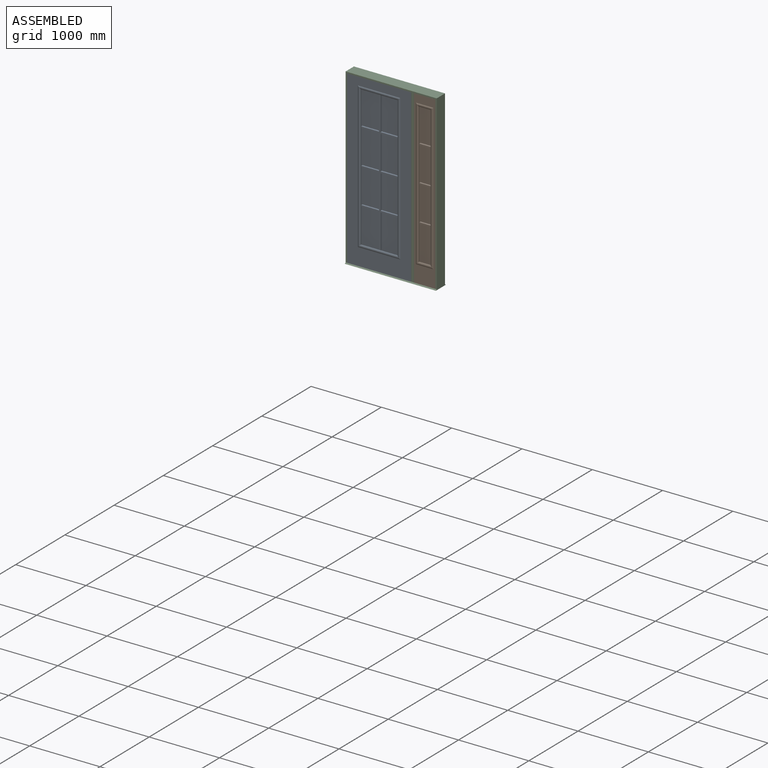
[diagram: assembled view]
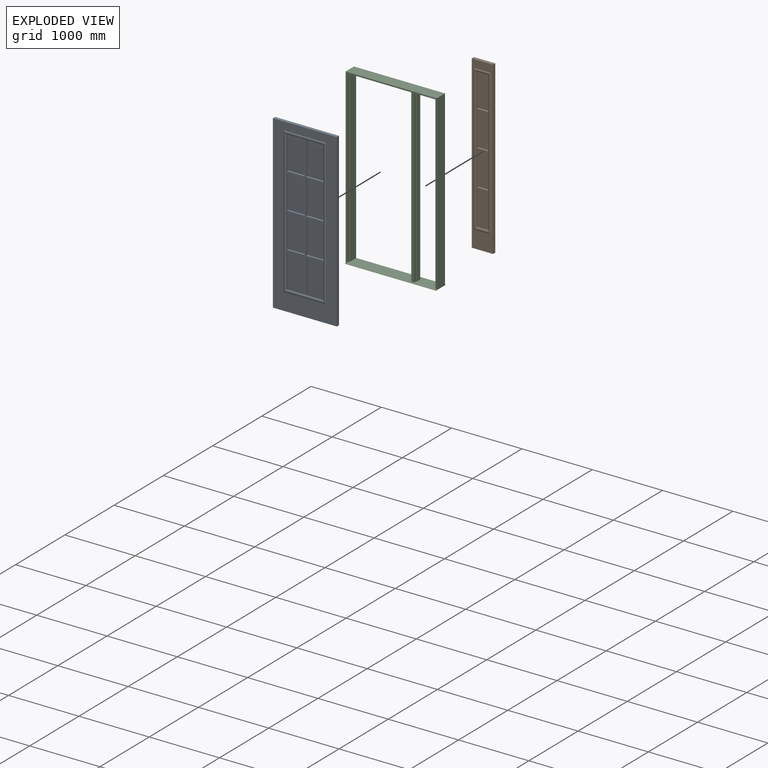
[diagram: exploded view]
GUIDED TOUR — MATED ASSEMBLY (Onshape document 57436517e4b0e6f621c3f62f, AutoMate assembly 57436517e4b0e6f621c3f62f_8da6c05ed406811d1453ef13_94d8b8f20b467b041387943a_default)

This assembly has 3 components, labeled P0..P2 below (a component is one placed occurrence of a part; the same part can appear more than once), held together by 6 mates. A mate is a constraint between two components; its type names the relative motion it leaves free:
  PLANAR — leaves sliding in the plane through the listed point (normal = the listed direction) and rotation about that normal free.
Axis/direction vectors are unit vectors and 'through' points are millimeter coordinates, both in the assembly's world frame.

MATES
  1. PLANAR "Planar 5": P0 <-> P2, direction (0.000, 0.000, 1.000) through (-344.49, 0.00, 2435.23) mm
  2. PLANAR "Planar 1": P1 <-> P0, direction (0.000, 0.000, -1.000) through (-301.63, -22.23, 0.00) mm
  3. PLANAR "Planar 2": P0 <-> P1, direction (0.000, -1.000, 0.000) through (-798.51, -44.45, 1132.57) mm
  4. PLANAR "Planar 6": P2 <-> P0, direction (1.000, 0.000, 0.000) through (-1255.71, -44.45, 1217.61) mm
  5. PLANAR "Planar 3": P1 <-> P0, direction (-1.000, 0.000, 0.000) through (-301.63, -22.23, 1217.61) mm
  6. PLANAR "Planar 4": P0 <-> P2, direction (0.000, -1.000, 0.000) through (-798.51, -44.45, 1132.57) mm

ASSEMBLY ORDER
  1. P2 — the base component [order verified]
  2. P0 [order verified]
  3. P1 [order verified]
Order-tag legend:
  [order verified] — this step's position reverses a verified removal order: the component was checked to insert without passing through the ones already placed.

Of the 3 components, 1 carries the full construction recipe — the FeatureScript program that regenerates the part's solid from scratch; the rest are supplied as boundary geometry only.
Each toured component is shown spotlighted twice — in the assembled view, then in the exploded view, where a leader line traces a displaced component back to its assembled socket (saturated green if recipe-attached, orange if geometry-only; every other component desaturated gray) — followed by its recipe or geometry summary and the mates that hold it.
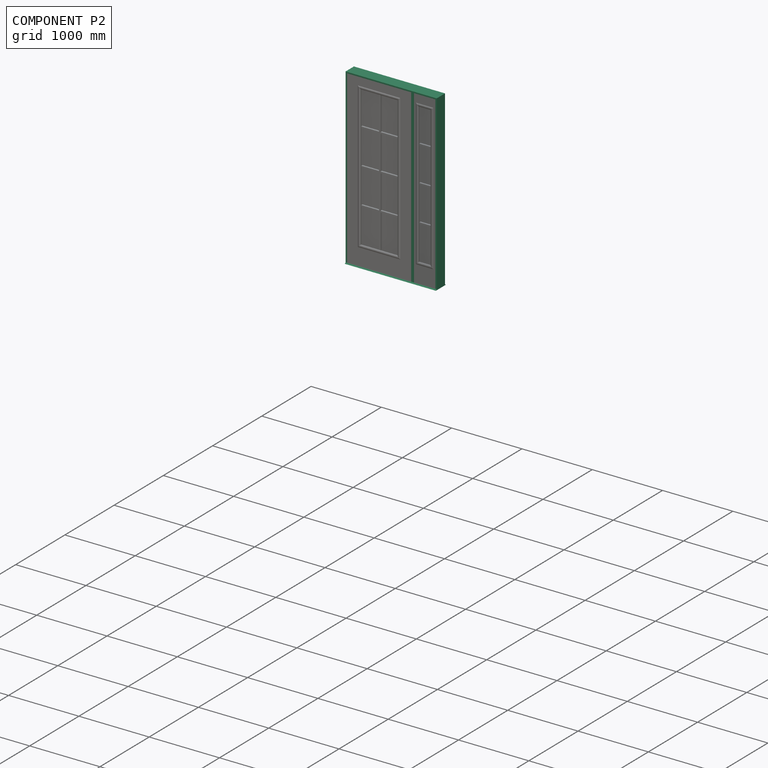
[diagram: component P2 — assembled]
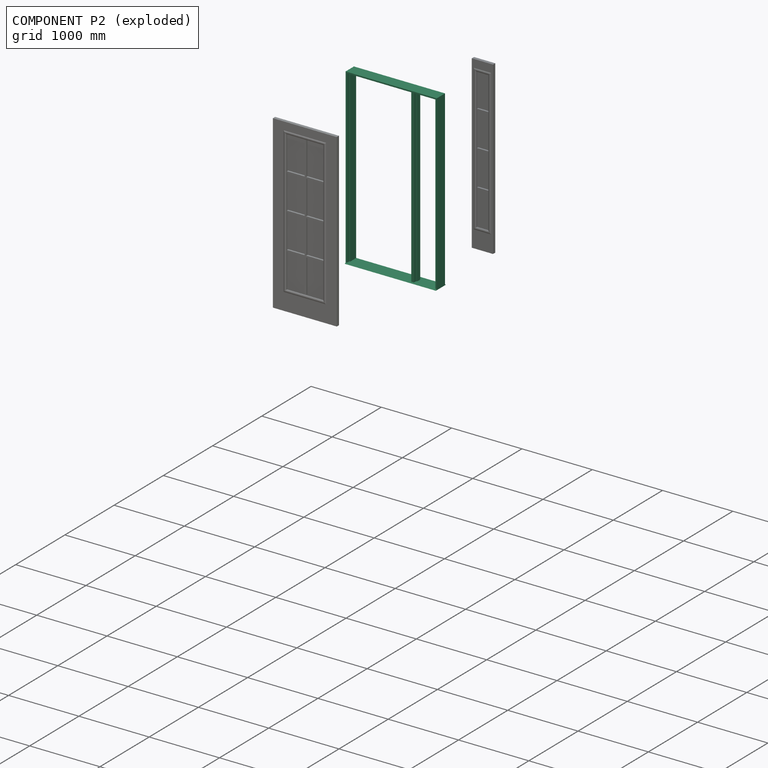
[diagram: component P2 — exploded]
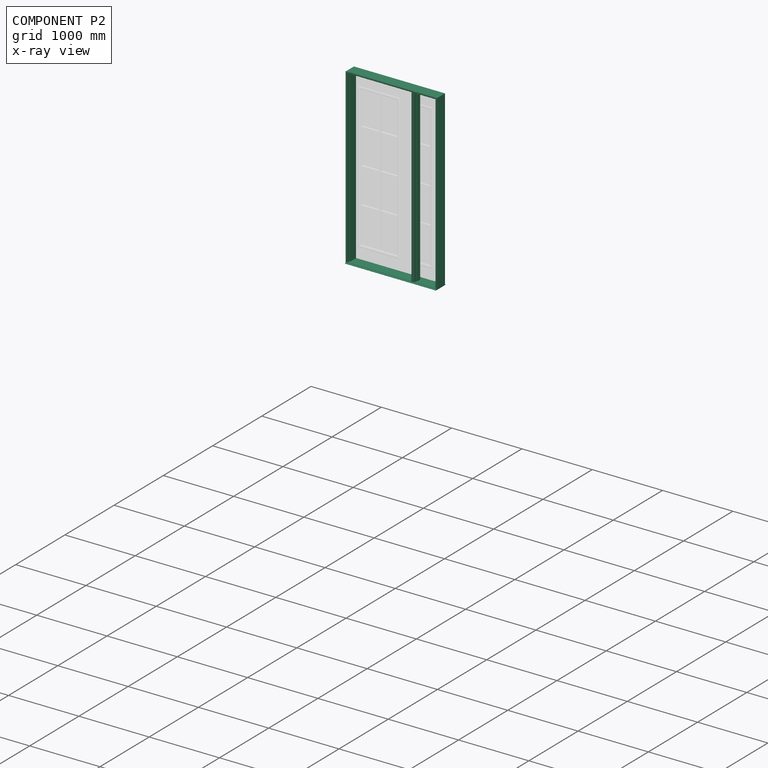
[diagram: component P2 — x-ray view]
COMPONENT P2 — recipe-attached (CADFS 00161113, mesh-verified: the recipe's output STEP matches this component's geometry to below the mesh-comparison resolution (tessellation chordal tolerance ~4.19 mm)).
Held by: PLANAR mate "Planar 5" to P0; PLANAR mate "Planar 6" to P0; PLANAR mate "Planar 4" to P0.
Construction recipe (FeatureScript — the CAD program that rebuilds this solid; sketch coordinates are in the units given by the * unit suffixes, e.g. mm):

FeatureScript 1511;
import(path : "onshape/std/geometry.fs", version : "1511.0");
import(path : "onshape/std/common.fs", version : "1511.0");
const mm = millimeter;
const VERTEX = EntityType.VERTEX;
const EDGE = EntityType.EDGE;
const FACE = EntityType.FACE;
const BODY = EntityType.BODY;
function v(x, y){return vector(x, y);}
function OD(order){return orderDisambiguation(order);}
function OSD(set){return originalSetDisambiguation(set);}
function TD(topology){return topologyDisambiguation(topology);}
function TDD(query){return trueDependencyDisambiguation(query);}
function sQuery(a, b, c) {return sketchEntityQuery(a, b, c);}

annotation { "Feature Type Name" : "Feature", "Feature Type Description" : "" }
export const myFeature = defineFeature(function(context is Context, id is Id, definition is map)
    precondition{}
    {
        {
            var Q0;
            Q0=qCreatedBy(makeId("Top.planeOp"),FACE);
            var sketch = newSketch(context, id + "F0", { "sketchPlane" : qUnion([Q0])});
            skLineSegment(sketch, "E0", {"start": v(0, 0) * mm, "end": v(0, 168.28) * mm});
            skLineSegment(sketch, "E1", {"start": v(-31.75, 46.04) * mm, "end": v(-19.05, 46.04) * mm});
            skLineSegment(sketch, "E2", {"start": v(-19.05, 46.04) * mm, "end": v(-19.05, 0) * mm});
            skLineSegment(sketch, "E3", {"start": v(-19.05, 0) * mm, "end": v(0, 0) * mm});
            skLineSegment(sketch, "E4", {"start": v(-476.25, 0) * mm, "end": v(-476.25, 102.45) * mm, "construction": true});
            skLineSegment(sketch, "E5", {"start": v(0, 168.28) * mm, "end": v(-31.75, 168.28) * mm});
            skLineSegment(sketch, "E6", {"start": v(-31.75, 168.28) * mm, "end": v(-31.75, 46.04) * mm});
            skLineSegment(sketch, "E7.MirrorCS", {"start": v(-933.45, 46.04) * mm, "end": v(-933.45, 0) * mm});
            skLineSegment(sketch, "E8.MirrorCS", {"start": v(-920.75, 46.04) * mm, "end": v(-933.45, 46.04) * mm});
            skLineSegment(sketch, "E9.MirrorCS", {"start": v(-920.75, 168.28) * mm, "end": v(-920.75, 46.04) * mm});
            skLineSegment(sketch, "E10.MirrorCS", {"start": v(-952.5, 168.28) * mm, "end": v(-920.75, 168.28) * mm});
            skLineSegment(sketch, "E11.MirrorCS", {"start": v(-952.5, 0) * mm, "end": v(-952.5, 168.28) * mm});
            skLineSegment(sketch, "E12.MirrorCS", {"start": v(-933.45, 0) * mm, "end": v(-952.5, 0) * mm});
            skSolve(sketch);
        }
        {
            var Q0;
            Q0=qCreatedBy(makeId("Top.planeOp"),FACE);
            var sketch = newSketch(context, id + "F1", { "sketchPlane" : qUnion([Q0])});
            skLineSegment(sketch, "E13.0.0", {"start": v(-952.5, 0) * mm, "end": v(-933.45, 0) * mm});
            skLineSegment(sketch, "E13.0.1", {"start": v(-933.45, 0) * mm, "end": v(-933.45, 46.04) * mm});
            skLineSegment(sketch, "E13.0.2", {"start": v(-933.45, 46.04) * mm, "end": v(-920.75, 46.04) * mm});
            skLineSegment(sketch, "E13.0.3", {"start": v(-920.75, 46.04) * mm, "end": v(-920.75, 168.28) * mm});
            skLineSegment(sketch, "E13.0.4", {"start": v(-920.75, 168.28) * mm, "end": v(-952.5, 168.28) * mm});
            skLineSegment(sketch, "E13.0.5", {"start": v(-952.5, 168.28) * mm, "end": v(-952.5, 0) * mm});
            skLineSegment(sketch, "E14.0", {"start": v(-19.05, 46.04) * mm, "end": v(-19.05, 0) * mm});
            skLineSegment(sketch, "E15.0", {"start": v(-31.75, 46.04) * mm, "end": v(-19.05, 46.04) * mm});
            skLineSegment(sketch, "E16", {"start": v(-31.75, 46.04) * mm, "end": v(-31.75, 111.13) * mm});
            skLineSegment(sketch, "E17.0", {"start": v(0, 0) * mm, "end": v(0, 168.28) * mm, "construction": true});
            skLineSegment(sketch, "E18.MirrorCS", {"start": v(31.75, 46.04) * mm, "end": v(31.75, 111.13) * mm});
            skLineSegment(sketch, "E19.MirrorCS", {"start": v(31.75, 46.04) * mm, "end": v(19.05, 46.04) * mm});
            skLineSegment(sketch, "E20.MirrorCS", {"start": v(19.05, 46.04) * mm, "end": v(19.05, 0) * mm});
            skLineSegment(sketch, "E21", {"start": v(-31.75, 111.13) * mm, "end": v(31.75, 111.13) * mm});
            skLineSegment(sketch, "E22", {"start": v(19.05, 0) * mm, "end": v(-19.05, 0) * mm});
            skPoint(sketch, "E23", {"position": v(323.85, 0) * mm});
            skLineSegment(sketch, "E24", {"start": v(-933.45, 0) * mm, "end": v(323.85, 0) * mm, "construction": true});
            skLineSegment(sketch, "E25", {"start": v(-304.8, 0) * mm, "end": v(-304.8, 103.65) * mm, "construction": true});
            skLineSegment(sketch, "E26.MirrorCS", {"start": v(323.85, 46.04) * mm, "end": v(311.15, 46.04) * mm});
            skLineSegment(sketch, "E27.MirrorCS", {"start": v(342.9, 0) * mm, "end": v(323.85, 0) * mm});
            skLineSegment(sketch, "E28.MirrorCS", {"start": v(342.9, 168.28) * mm, "end": v(342.9, 0) * mm});
            skLineSegment(sketch, "E29.MirrorCS", {"start": v(311.15, 168.28) * mm, "end": v(342.9, 168.28) * mm});
            skLineSegment(sketch, "E30.MirrorCS", {"start": v(311.15, 46.04) * mm, "end": v(311.15, 168.28) * mm});
            skLineSegment(sketch, "E31.MirrorCS", {"start": v(323.85, 0) * mm, "end": v(323.85, 46.04) * mm});
            skSolve(sketch);
        }
        {
            var Q0;
            Q0 = qSketchRegion(id + "F1", true);
            extrude(context, id + "F2", {"entities" : qUnion([Q0]), "depth" : 2454.27 * mm});
        }
        {
            var Q0;
            Q0=qCreatedBy(makeId("Front.planeOp"),FACE);
            var sketch = newSketch(context, id + "F3", { "sketchPlane" : qUnion([Q0])});
            skPoint(sketch, "E32.0", {"position": v(-952.5, 2454.28) * mm});
            skPoint(sketch, "E33.0", {"position": v(-31.75, 2454.28) * mm});
            skLineSegment(sketch, "E34", {"start": v(-952.5, 2454.28) * mm, "end": v(-492.13, 1993.9) * mm});
            skLineSegment(sketch, "E35", {"start": v(-492.12, 1993.9) * mm, "end": v(-31.75, 2454.28) * mm});
            skLineSegment(sketch, "E36", {"start": v(-952.5, 2454.28) * mm, "end": v(-31.75, 2454.28) * mm});
            skPoint(sketch, "E37.0", {"position": v(31.75, 2454.28) * mm});
            skPoint(sketch, "E38.0", {"position": v(342.9, 2454.28) * mm});
            skLineSegment(sketch, "E39", {"start": v(31.75, 2454.28) * mm, "end": v(187.32, 2298.7) * mm});
            skLineSegment(sketch, "E40", {"start": v(187.33, 2298.7) * mm, "end": v(342.9, 2454.28) * mm});
            skLineSegment(sketch, "E41", {"start": v(31.75, 2454.28) * mm, "end": v(342.9, 2454.28) * mm});
            skSolve(sketch);
        }
        {
            var Q0;
            Q0=qSketchRegion(id+"F3",true);
            extrude(context, id + "F4", {"entities" : qUnion([Q0]), "operationType" : NewBodyOperationType.REMOVE, "endBound" : BoundingType.THROUGH_ALL, "oppositeDirection" : true, "depth" : 25.4 * mm});
        }
        {
            var Q0;
            Q0=qCreatedBy(makeId("Right.planeOp"),FACE);
            var sketch = newSketch(context, id + "F5", { "sketchPlane" : qUnion([Q0])});
            skLineSegment(sketch, "E42.0.0", {"start": v(168.28, 2454.28) * mm, "end": v(168.28, 2422.53) * mm});
            skLineSegment(sketch, "E42.0.1", {"start": v(168.28, 2422.53) * mm, "end": v(46.04, 2422.53) * mm});
            skLineSegment(sketch, "E42.0.2", {"start": v(46.04, 2422.53) * mm, "end": v(46.04, 2435.23) * mm});
            skLineSegment(sketch, "E42.0.3", {"start": v(46.04, 2435.23) * mm, "end": v(0, 2435.23) * mm});
            skLineSegment(sketch, "E42.0.4", {"start": v(0, 2435.23) * mm, "end": v(0, 2454.28) * mm});
            skLineSegment(sketch, "E42.0.5", {"start": v(0, 2454.28) * mm, "end": v(168.28, 2454.28) * mm});
            skSolve(sketch);
        }
        {
            var Q0;
            Q0=qSketchRegion(id+"F5",true);
            var Q1;
            Q1=makeQuery(id+"F2.opExtrude","SWEPT_FACE",FACE,{"disambiguationData":[OSD([sQuery(id+"F1.wireOp",EDGE,"E13.0.5")])]});
            var Q2;
            Q2=makeQuery(id+"F2.opExtrude","SWEPT_FACE",FACE,{"disambiguationData":[OSD([sQuery(id+"F1.wireOp",EDGE,"E28.MirrorCS")])]});
            extrude(context, id + "F6", {"entities" : qUnion([Q0]), "operationType" : NewBodyOperationType.ADD, "endBound" : BoundingType.UP_TO_SURFACE, "oppositeDirection" : true, "endBoundEntityFace" : qUnion([Q1]), "depth" : 914.4 * mm, "hasSecondDirection" : true, "secondDirectionBound" : SecondDirectionBoundingType.UP_TO_SURFACE, "secondDirectionOppositeDirection" : false, "secondDirectionBoundEntityFace" : qUnion([Q2]), "secondDirectionDepth" : 25.4 * mm});
        }
        {
            var Q0;
            Q0=qCreatedBy(makeId("Right.planeOp"),FACE);
            var sketch = newSketch(context, id + "F7", { "sketchPlane" : qUnion([Q0])});
            skPoint(sketch, "E43.0", {"position": v(84.14, 0) * mm});
            skLineSegment(sketch, "E44", {"start": v(84.14, 0) * mm, "end": v(84.14, -12.7) * mm, "construction": true});
            skLineSegment(sketch, "E45", {"start": v(84.14, -12.7) * mm, "end": v(185.74, -12.7) * mm});
            skLineSegment(sketch, "E46", {"start": v(185.74, -12.7) * mm, "end": v(169.86, 0) * mm});
            skLineSegment(sketch, "E47", {"start": v(169.86, 0) * mm, "end": v(84.14, 0) * mm});
            skLineSegment(sketch, "E48.MirrorCS", {"start": v(-1.59, 0) * mm, "end": v(84.14, 0) * mm});
            skLineSegment(sketch, "E49.MirrorCS", {"start": v(84.14, -12.7) * mm, "end": v(-17.46, -12.7) * mm});
            skLineSegment(sketch, "E50.MirrorCS", {"start": v(-17.46, -12.7) * mm, "end": v(-1.59, 0) * mm});
            skSolve(sketch);
        }
        {
            var Q0;
            Q0=qSketchRegion(id+"F7",true);
            var Q1;
            Q1=makeQuery(id+"F2.opExtrude","SWEPT_FACE",FACE,{"disambiguationData":[OSD([sQuery(id+"F1.wireOp",EDGE,"E28.MirrorCS")])]});
            var Q2;
            Q2=makeQuery(id+"F2.opExtrude","SWEPT_FACE",FACE,{"disambiguationData":[OSD([sQuery(id+"F1.wireOp",EDGE,"E13.0.5")])]});
            extrude(context, id + "F8", {"entities" : qUnion([Q0]), "operationType" : NewBodyOperationType.ADD, "endBound" : BoundingType.UP_TO_SURFACE, "endBoundEntityFace" : qUnion([Q1]), "depth" : 25.4 * mm, "hasSecondDirection" : true, "secondDirectionBound" : SecondDirectionBoundingType.UP_TO_SURFACE, "secondDirectionOppositeDirection" : true, "secondDirectionBoundEntityFace" : qUnion([Q2]), "secondDirectionDepth" : 25.4 * mm});
        }
    });
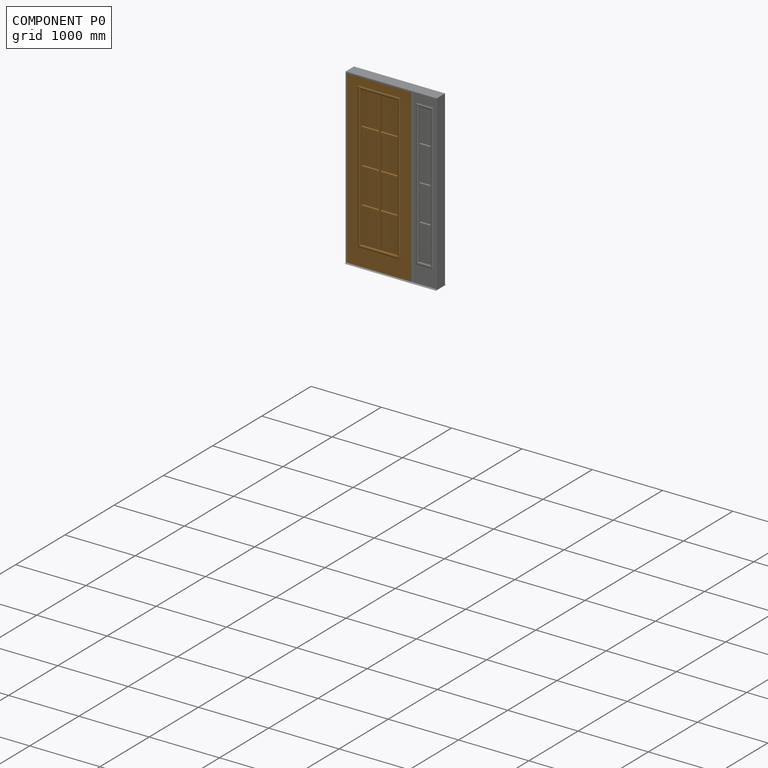
[diagram: component P0 — assembled]
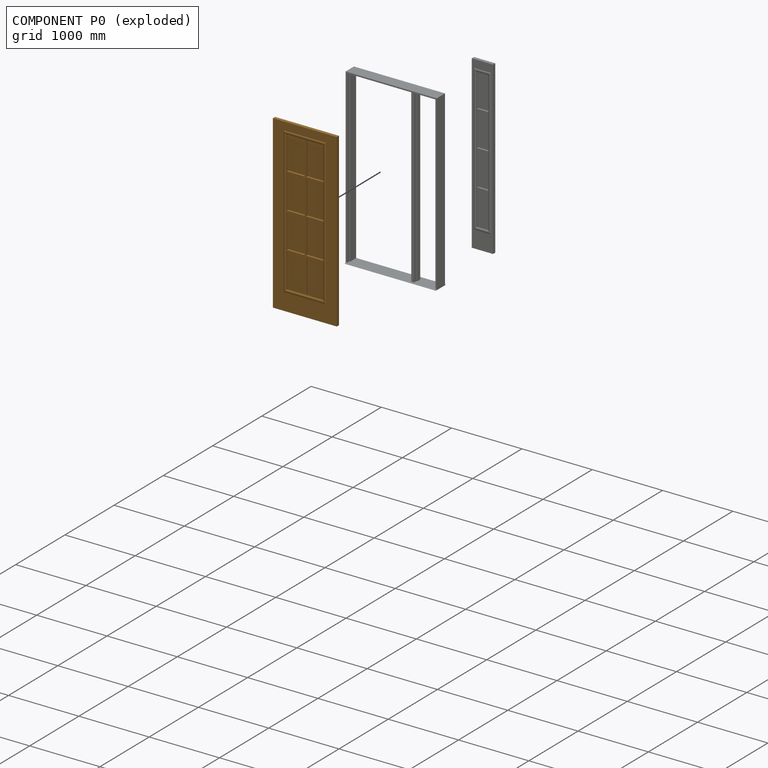
[diagram: component P0 — exploded]
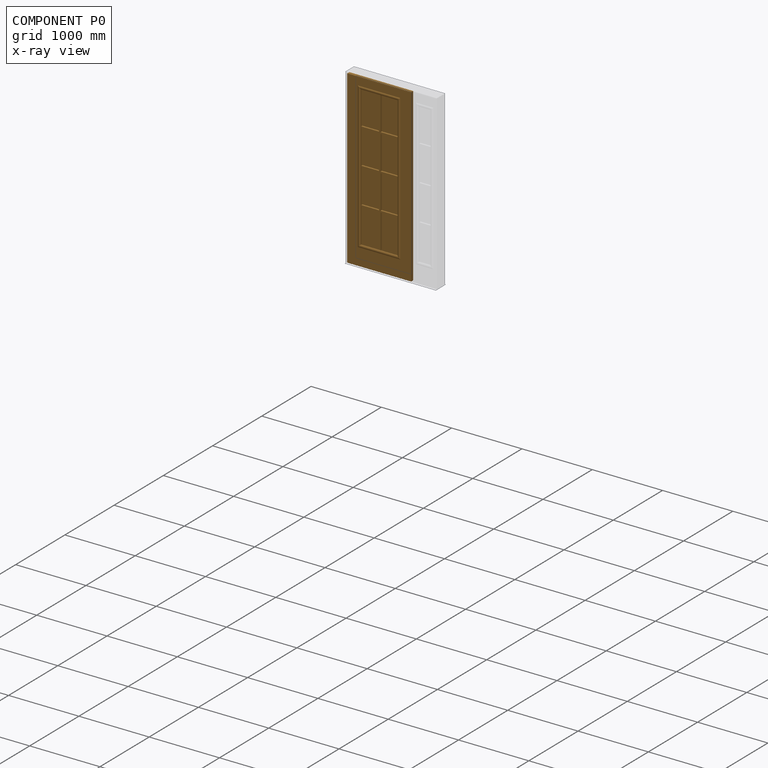
[diagram: component P0 — x-ray view]
COMPONENT P0 — geometry summary (no construction recipe available for this part):
  bounding box: 2435.2 x 908.1 x 57.2 mm
  B-rep topology: 1 solid, 60 faces, 312 edges
  volume: 58694494 mm^3 (46% of its bounding box)
  symmetry: mirror-symmetric across its x mid-plane
Held by: PLANAR mate "Planar 5" to P2; PLANAR mate "Planar 1" to P1; PLANAR mate "Planar 2" to P1; PLANAR mate "Planar 6" to P2; PLANAR mate "Planar 3" to P1; PLANAR mate "Planar 4" to P2.
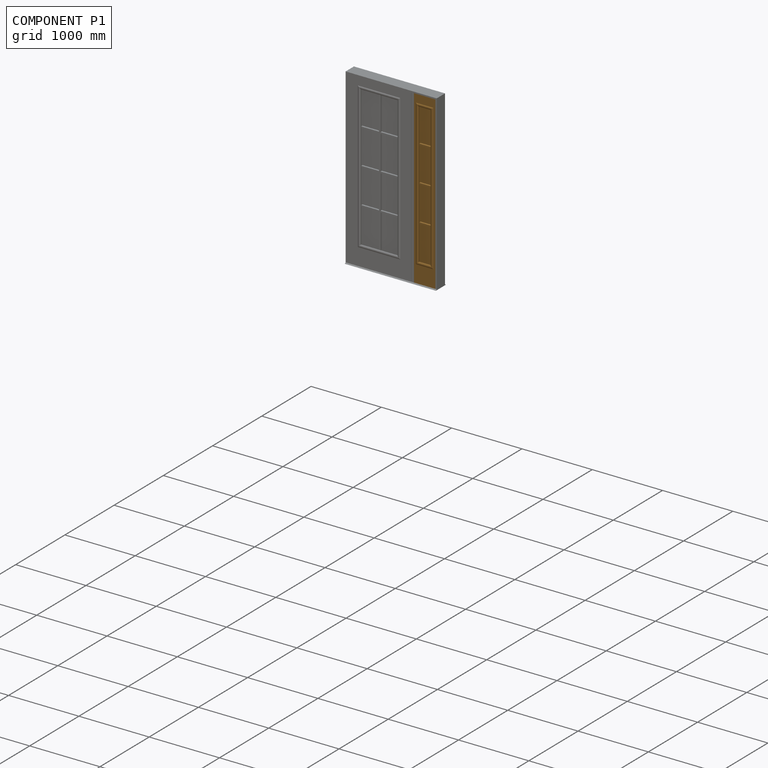
[diagram: component P1 — assembled]
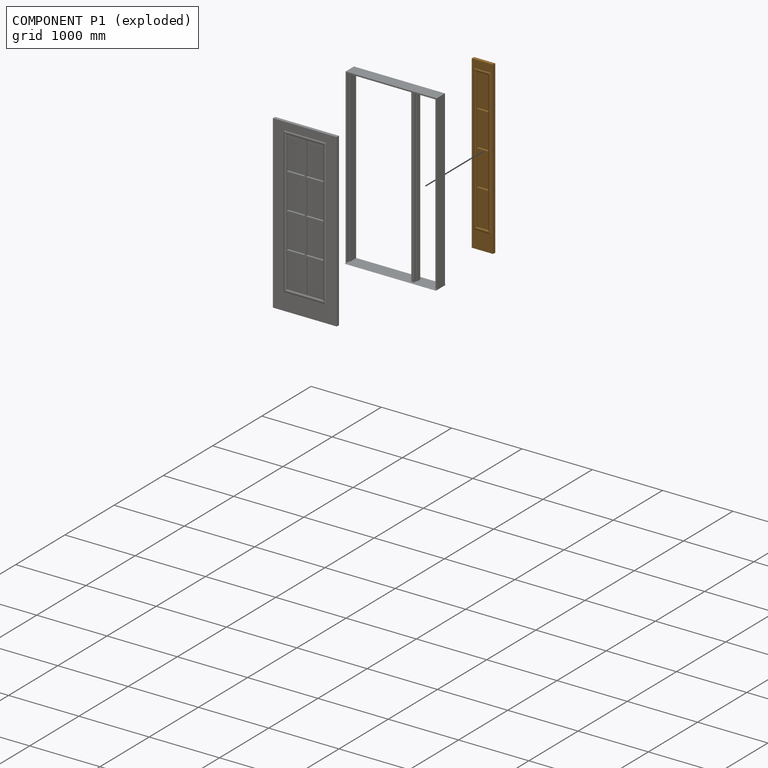
[diagram: component P1 — exploded]
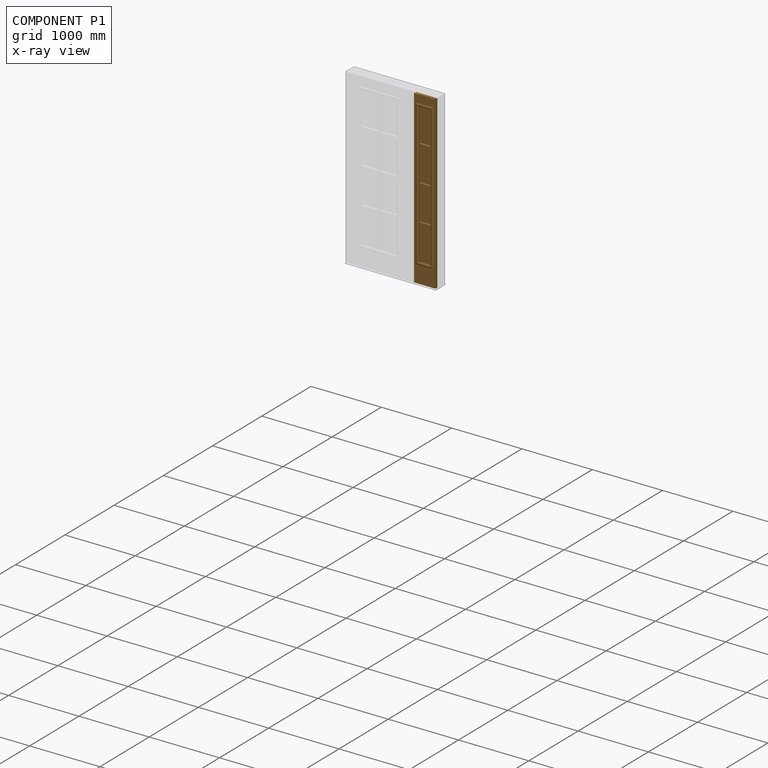
[diagram: component P1 — x-ray view]
COMPONENT P1 — geometry summary (no construction recipe available for this part):
  bounding box: 2435.2 x 301.6 x 57.2 mm
  B-rep topology: 1 solid, 46 faces, 216 edges
  volume: 18658657 mm^3 (44% of its bounding box)
  symmetry: mirror-symmetric across its x mid-plane
Held by: PLANAR mate "Planar 1" to P0; PLANAR mate "Planar 2" to P0; PLANAR mate "Planar 3" to P0.
PROVENANCE & LICENSES
Assembly (occurrences, transforms, mates, per-part STEP geometry): AutoMate dataset, Zenodo record 7776208, CC0.
Construction recipes: CADFS (HuggingFace VladPyatov/CADFS, CC-BY-4.0, layered over the ABC dataset), FeatureScript reconstruction programs keyed by ABC model id.
Join: ABC meta listings map ABC model id -> Onshape documentId; within a shared document, parts are matched by geometric signature (bounding-box dims + volume at 0.1% relative tolerance, exact B-rep face/solid counts).
Verification: 1 of this assembly's 3 components carries a recipe attachment, and every attachment is mesh-verified: the CADFS STEP and the AutoMate member STEP were compared as meshes in their shared local frame (symmetric sampled-point-to-mesh distance); worst across the 1 attachment: below the mesh-comparison resolution (tessellation chordal tolerance ~4.19 mm) on a 2794 mm part.
Renders: orthographic iso camera (az 35 / el 25); the floor grid conveys scale (grid pitch printed in each image; no ruler). In the exploded view each component is displaced by its stored offset vector: the offsets alone carry the explosion direction (mate normal/axis signs are not orientation cues and do not encode it), and separation distances are assigned per mate-chain, not proportionally to assembly-order depth.
